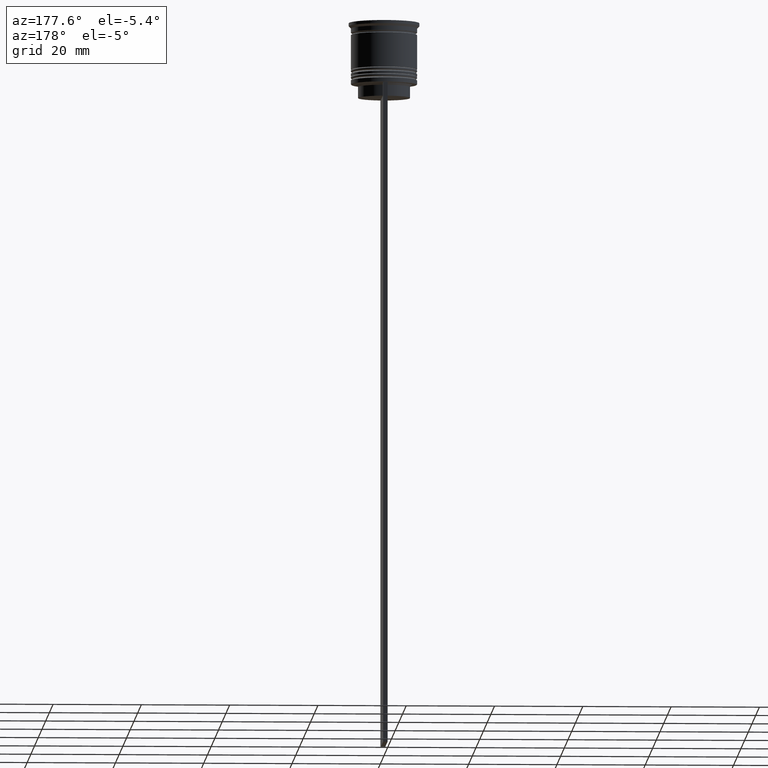
[diagram: clean part render]
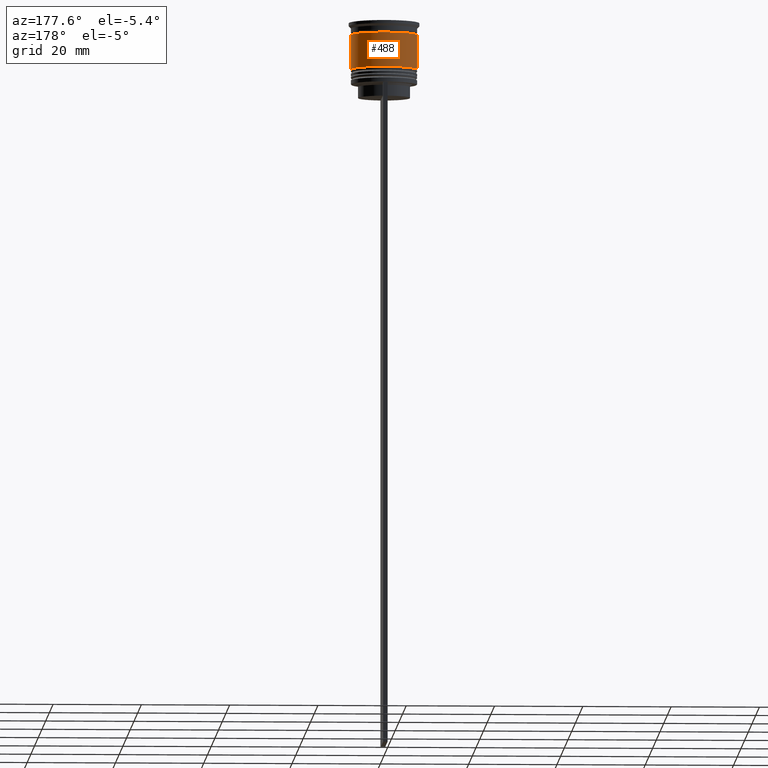
[diagram: same view with one face highlighted and labeled with its STEP entity id]
A machine part, auxiliary view. The second image highlights one B-rep face of the part: STEP entity #488.
In plain terms, the highlighted cylindrical surface (edge-blend (fillet) strip) has radius 7.5 mm, axis along (-0, -0, 1).
Its self-contained STEP definition (entity closure, byte-faithful):
#98 = DIRECTION ( 'NONE',  ( 1.000000000000000000, 0.000000000000000000, 0.000000000000000000 ) ) ;
#164 = ORIENTED_EDGE ( 'NONE', *, *, #958, .T. ) ;
#248 = DIRECTION ( 'NONE',  ( 1.000000000000000000, 0.000000000000000000, 0.000000000000000000 ) ) ;
#258 = CARTESIAN_POINT ( 'NONE',  ( -7.499999999999998224, 9.184850993605145972E-16, -2.700000000000001510 ) ) ;
#336 = CARTESIAN_POINT ( 'NONE',  ( 7.500000000000000000, 0.000000000000000000, 0.000000000000000000 ) ) ;
#411 = FACE_OUTER_BOUND ( 'NONE', #2095, .T. ) ;
#436 = AXIS2_PLACEMENT_3D ( 'NONE', #1412, #865, #98 ) ;
#482 = CARTESIAN_POINT ( 'NONE',  ( -7.500000000000001776, 9.184850993605149917E-16, -10.50000000000000000 ) ) ;
#488 = ADVANCED_FACE ( 'NONE', ( #411 ), #1763, .T. ) ;
#546 = VERTEX_POINT ( 'NONE', #482 ) ;
#627 = DIRECTION ( 'NONE',  ( -0.000000000000000000, -0.000000000000000000, 1.000000000000000000 ) ) ;
#669 = VERTEX_POINT ( 'NONE', #2273 ) ;
#692 = CARTESIAN_POINT ( 'NONE',  ( 0.000000000000000000, 0.000000000000000000, -10.50000000000000000 ) ) ;
#851 = ORIENTED_EDGE ( 'NONE', *, *, #1864, .F. ) ;
#865 = DIRECTION ( 'NONE',  ( -0.000000000000000000, -0.000000000000000000, 1.000000000000000000 ) ) ;
#889 = DIRECTION ( 'NONE',  ( -0.000000000000000000, -0.000000000000000000, 1.000000000000000000 ) ) ;
#909 = VECTOR ( 'NONE', #627, 1000.000000000000000 ) ;
#927 = VERTEX_POINT ( 'NONE', #1041 ) ;
#958 = EDGE_CURVE ( 'NONE', #669, #546, #1946, .T. ) ;
#986 = AXIS2_PLACEMENT_3D ( 'NONE', #2139, #1574, #248 ) ;
#1041 = CARTESIAN_POINT ( 'NONE',  ( 7.499999999999998224, 0.000000000000000000, -2.700000000000001510 ) ) ;
#1171 = LINE ( 'NONE', #2151, #909 ) ;
#1346 = ORIENTED_EDGE ( 'NONE', *, *, #1351, .T. ) ;
#1351 = EDGE_CURVE ( 'NONE', #546, #1808, #1171, .T. ) ;
#1391 = CIRCLE ( 'NONE', #436, 7.499999999999998224 ) ;
#1412 = CARTESIAN_POINT ( 'NONE',  ( 0.000000000000000000, 0.000000000000000000, -2.700000000000001510 ) ) ;
#1493 = EDGE_CURVE ( 'NONE', #669, #927, #1664, .T. ) ;
#1574 = DIRECTION ( 'NONE',  ( -0.000000000000000000, -0.000000000000000000, 1.000000000000000000 ) ) ;
#1587 = AXIS2_PLACEMENT_3D ( 'NONE', #692, #889, #2433 ) ;
#1664 = LINE ( 'NONE', #336, #1949 ) ;
#1763 = CYLINDRICAL_SURFACE ( 'NONE', #986, 7.500000000000000000 ) ;
#1808 = VERTEX_POINT ( 'NONE', #258 ) ;
#1864 = EDGE_CURVE ( 'NONE', #927, #1808, #1391, .T. ) ;
#1946 = CIRCLE ( 'NONE', #1587, 7.500000000000001776 ) ;
#1949 = VECTOR ( 'NONE', #2072, 1000.000000000000000 ) ;
#2072 = DIRECTION ( 'NONE',  ( -0.000000000000000000, -0.000000000000000000, 1.000000000000000000 ) ) ;
#2095 = EDGE_LOOP ( 'NONE', ( #164, #1346, #851, #2127 ) ) ;
#2127 = ORIENTED_EDGE ( 'NONE', *, *, #1493, .F. ) ;
#2139 = CARTESIAN_POINT ( 'NONE',  ( 0.000000000000000000, 0.000000000000000000, 0.000000000000000000 ) ) ;
#2151 = CARTESIAN_POINT ( 'NONE',  ( -7.500000000000000000, 9.184850993605147944E-16, 0.000000000000000000 ) ) ;
#2273 = CARTESIAN_POINT ( 'NONE',  ( 7.500000000000001776, 0.000000000000000000, -10.50000000000000000 ) ) ;
#2433 = DIRECTION ( 'NONE',  ( 1.000000000000000000, 0.000000000000000000, 0.000000000000000000 ) ) ;